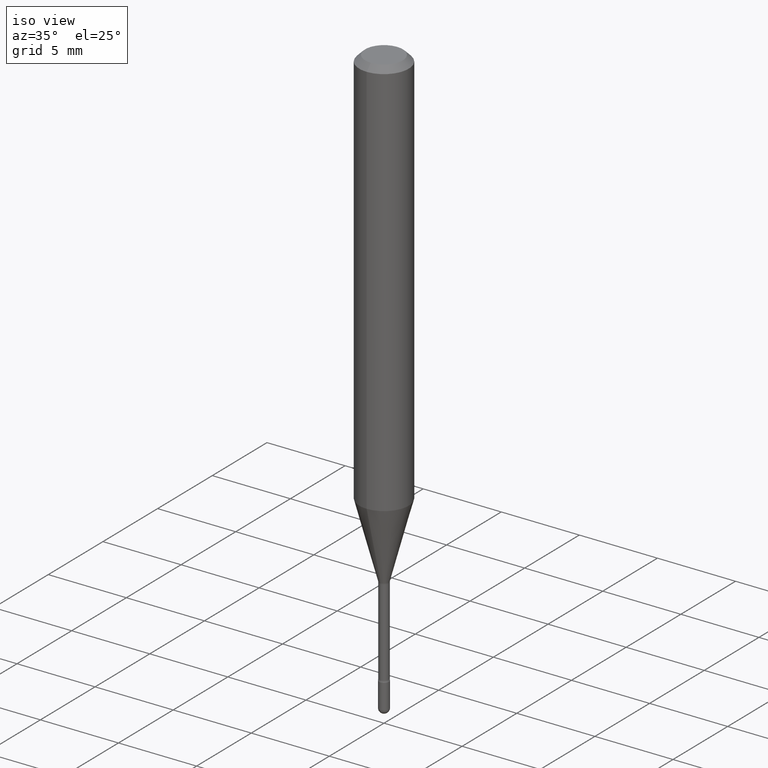
[diagram: clean part render]
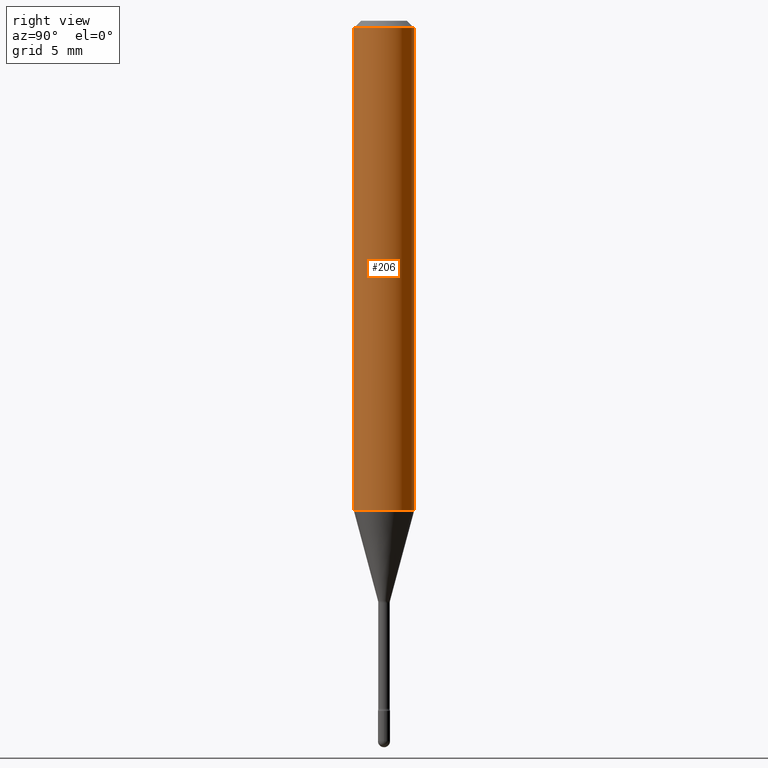
[diagram: tour spotlight — one face highlighted and labeled with its STEP entity id]
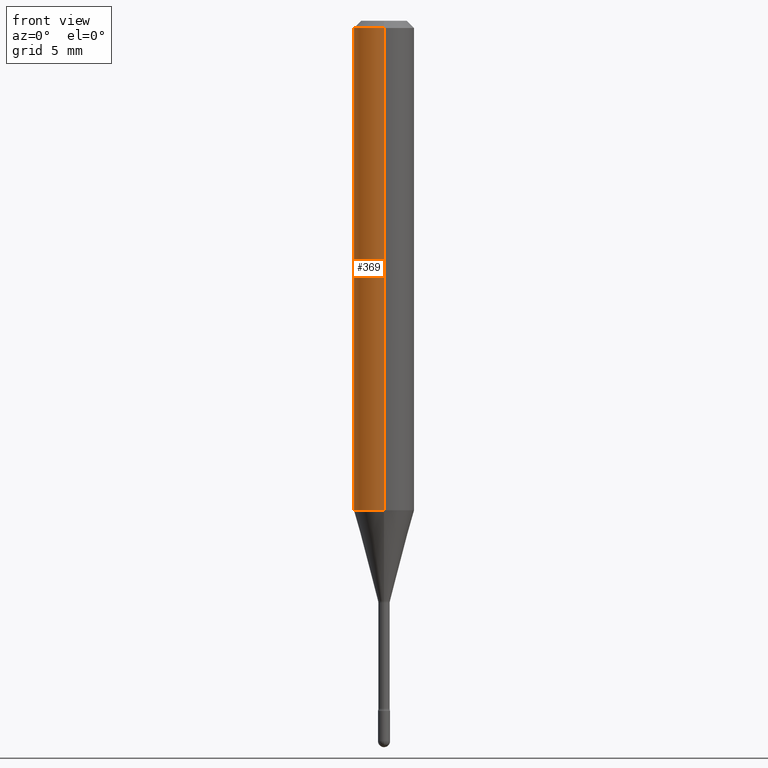
[diagram: tour spotlight — one face highlighted and labeled with its STEP entity id]
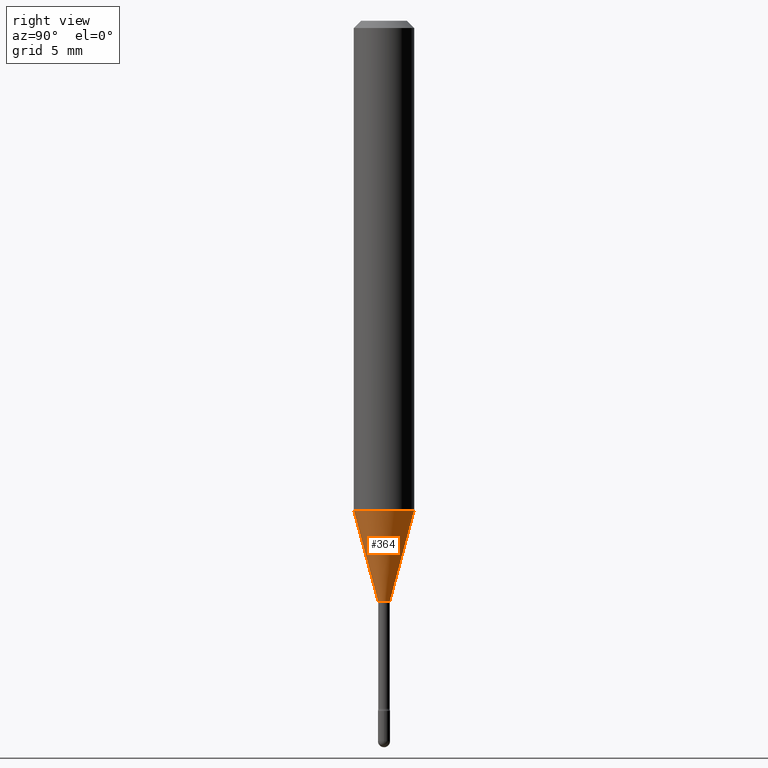
[diagram: tour spotlight — one face highlighted and labeled with its STEP entity id]
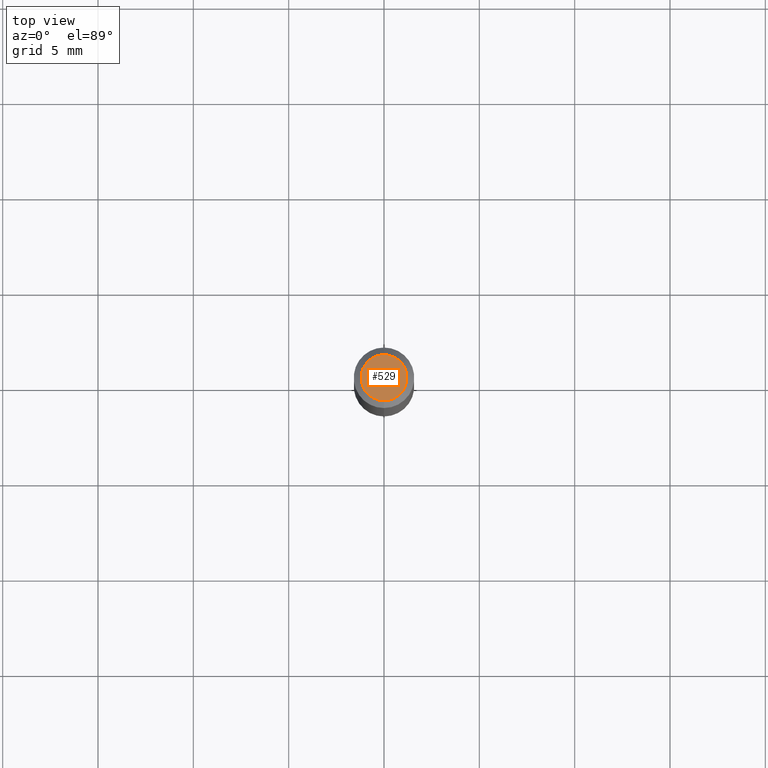
[diagram: tour spotlight — one face highlighted and labeled with its STEP entity id]
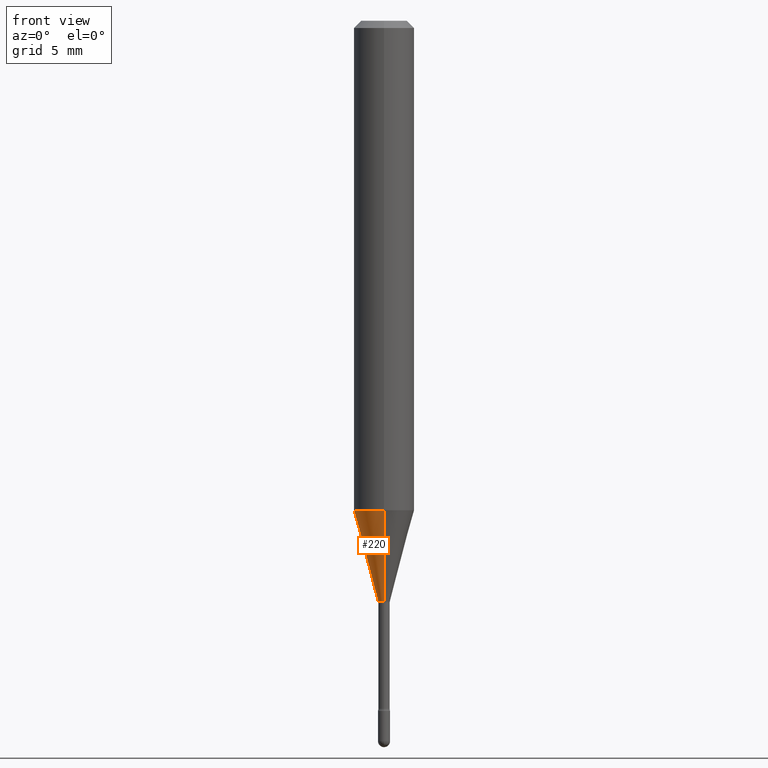
[diagram: tour spotlight — one face highlighted and labeled with its STEP entity id]
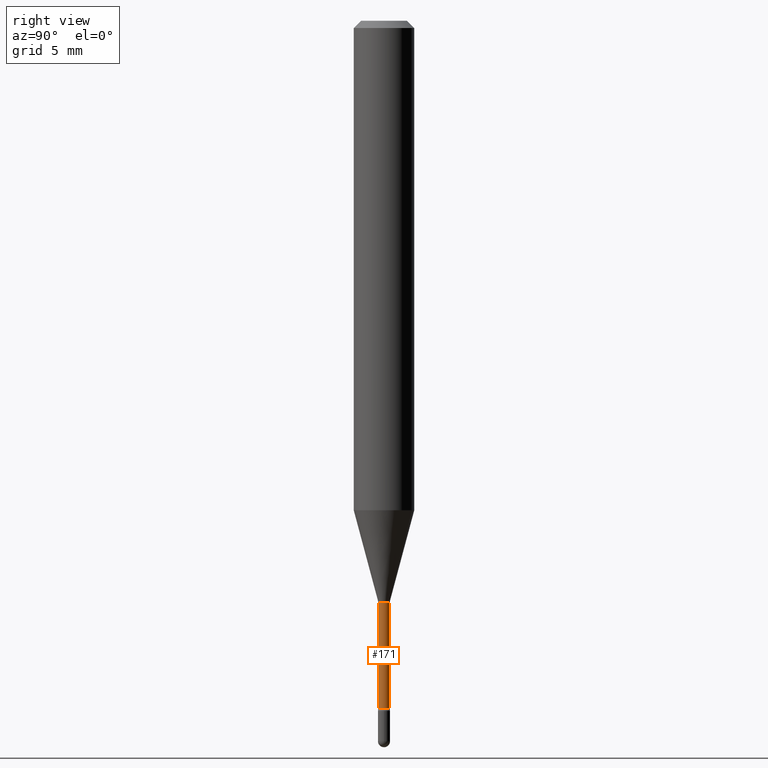
[diagram: tour spotlight — one face highlighted and labeled with its STEP entity id]
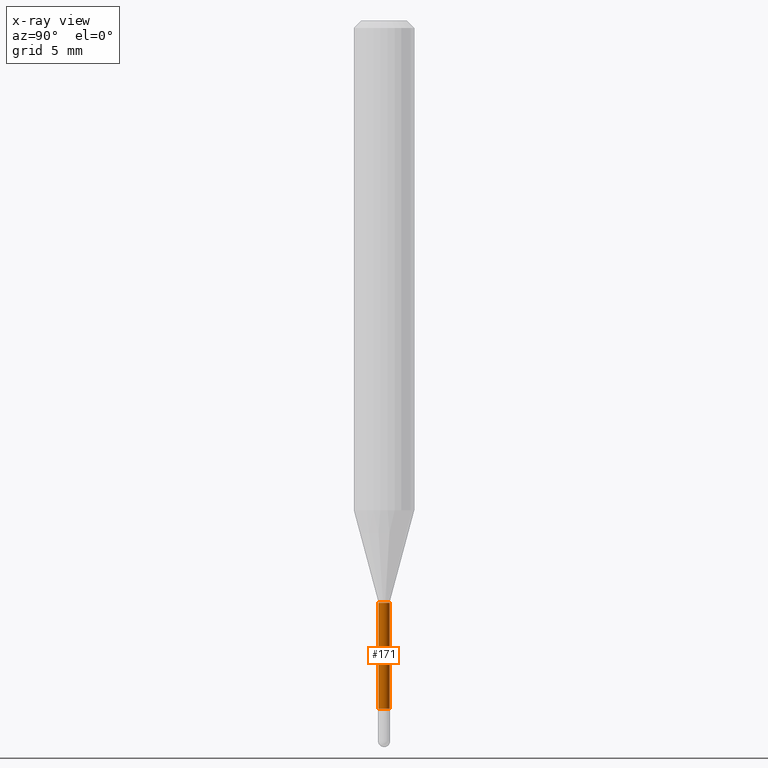
[diagram: x-ray of the same camera — body ghosted, this tour face saturated]
A machine part: a face-by-face anatomy tour. The part has 19 B-rep faces; the first image is the clean iso view, then the 6 largest visible faces are spotlighted one at a time (largest first), each with its STEP entity span.

Face 1 — right view, entity #206. In plain terms, the highlighted cylindrical surface (edge-blend (fillet) strip) has radius 1.5875 mm, axis along (-0, 0, 1).
Definition (entity closure, byte-faithful):
#1 = CARTESIAN_POINT ( 'NONE',  ( -4.364351673553912750E-16, -0.06250000000000005551, -0.01499999999999986587 ) ) ;
#18 = FACE_OUTER_BOUND ( 'NONE', #409, .T. ) ;
#44 = EDGE_CURVE ( 'NONE', #263, #101, #67, .T. ) ;
#67 = CIRCLE ( 'NONE', #438, 0.06250000000000000000 ) ;
#83 = EDGE_CURVE ( 'NONE', #263, #553, #386, .T. ) ;
#97 = CIRCLE ( 'NONE', #464, 0.06250000000000000000 ) ;
#101 = VERTEX_POINT ( 'NONE', #527 ) ;
#105 = DIRECTION ( 'NONE',  ( -6.982962677686265922E-15, -1.000000000000000000, 3.483106191921935554E-15 ) ) ;
#147 = DIRECTION ( 'NONE',  ( -2.445518621673723305E-29, 3.491410000228168223E-15, 1.000000000000000000 ) ) ;
#173 = CARTESIAN_POINT ( 'NONE',  ( 2.471437258851155351E-29, -3.528413435095343554E-15, -1.010598421515879863 ) ) ;
#192 = VERTEX_POINT ( 'NONE', #281 ) ;
#206 = ADVANCED_FACE ( 'NONE', ( #18 ), #402, .T. ) ;
#213 = EDGE_CURVE ( 'NONE', #553, #192, #97, .T. ) ;
#247 = ORIENTED_EDGE ( 'NONE', *, *, #251, .T. ) ;
#251 = EDGE_CURVE ( 'NONE', #101, #192, #279, .T. ) ;
#263 = VERTEX_POINT ( 'NONE', #452 ) ;
#275 = DIRECTION ( 'NONE',  ( -6.982962677686265922E-15, -1.000000000000000000, 3.491410000228167829E-15 ) ) ;
#279 = LINE ( 'NONE', #287, #328 ) ;
#281 = CARTESIAN_POINT ( 'NONE',  ( 4.440892098500874653E-16, 0.06249999999999993755, -0.01500000000000030129 ) ) ;
#287 = CARTESIAN_POINT ( 'NONE',  ( 4.440892098500625669E-16, 0.06250000000000000000, 2.598602738769855986E-16 ) ) ;
#298 = DIRECTION ( 'NONE',  ( -2.445518621673723586E-29, 3.491410000228167829E-15, 1.000000000000000000 ) ) ;
#316 = ORIENTED_EDGE ( 'NONE', *, *, #83, .F. ) ;
#328 = VECTOR ( 'NONE', #147, 39.37007874015748143 ) ;
#331 = ORIENTED_EDGE ( 'NONE', *, *, #213, .F. ) ;
#337 = ORIENTED_EDGE ( 'NONE', *, *, #44, .T. ) ;
#340 = AXIS2_PLACEMENT_3D ( 'NONE', #506, #398, #275 ) ;
#363 = CARTESIAN_POINT ( 'NONE',  ( 3.668277932510605575E-31, -5.237115000342280931E-17, -0.01500000000000008271 ) ) ;
#378 = CARTESIAN_POINT ( 'NONE',  ( -4.364351673553916201E-16, -0.06250000000000000000, 6.962865239055065279E-16 ) ) ;
#386 = LINE ( 'NONE', #378, #556 ) ;
#398 = DIRECTION ( 'NONE',  ( -2.445518621673723586E-29, 3.491410000228167829E-15, 1.000000000000000000 ) ) ;
#402 = CYLINDRICAL_SURFACE ( 'NONE', #340, 0.06250000000000000000 ) ;
#409 = EDGE_LOOP ( 'NONE', ( #337, #247, #331, #316 ) ) ;
#438 = AXIS2_PLACEMENT_3D ( 'NONE', #173, #298, #562 ) ;
#452 = CARTESIAN_POINT ( 'NONE',  ( -4.364351673553669682E-16, -0.06250000000000353884, -1.010598421515879641 ) ) ;
#464 = AXIS2_PLACEMENT_3D ( 'NONE', #363, #502, #105 ) ;
#479 = DIRECTION ( 'NONE',  ( -2.445518621673723305E-29, 3.491410000228168223E-15, 1.000000000000000000 ) ) ;
#502 = DIRECTION ( 'NONE',  ( -2.445518621673723586E-29, 3.491410000228167829E-15, 1.000000000000000000 ) ) ;
#506 = CARTESIAN_POINT ( 'NONE',  ( -1.169113584055446105E-44, 1.669184350826100908E-30, 4.780733988912460139E-16 ) ) ;
#527 = CARTESIAN_POINT ( 'NONE',  ( 4.440892098500871695E-16, 0.06249999999999647504, -1.010598421515880085 ) ) ;
#553 = VERTEX_POINT ( 'NONE', #1 ) ;
#556 = VECTOR ( 'NONE', #479, 39.37007874015748143 ) ;
#562 = DIRECTION ( 'NONE',  ( -6.982962677686265922E-15, -1.000000000000000000, 4.370956789862821150E-15 ) ) ;

Face 2 — front view, entity #369. In plain terms, the highlighted cylindrical surface (edge-blend (fillet) strip) has radius 1.5875 mm, axis along (-0, 0, 1).
Definition (entity closure, byte-faithful):
#1 = CARTESIAN_POINT ( 'NONE',  ( -4.364351673553912750E-16, -0.06250000000000005551, -0.01499999999999986587 ) ) ;
#2 = CARTESIAN_POINT ( 'NONE',  ( 3.668277932510605575E-31, -5.237115000342280931E-17, -0.01500000000000008271 ) ) ;
#29 = ORIENTED_EDGE ( 'NONE', *, *, #251, .F. ) ;
#39 = CYLINDRICAL_SURFACE ( 'NONE', #408, 0.06250000000000000000 ) ;
#68 = EDGE_LOOP ( 'NONE', ( #29, #528, #487, #257 ) ) ;
#83 = EDGE_CURVE ( 'NONE', #263, #553, #386, .T. ) ;
#101 = VERTEX_POINT ( 'NONE', #527 ) ;
#135 = CARTESIAN_POINT ( 'NONE',  ( -1.169113584055446105E-44, 1.669184350826100908E-30, 4.780733988912460139E-16 ) ) ;
#138 = DIRECTION ( 'NONE',  ( -2.445518621673723586E-29, 3.491410000228167829E-15, 1.000000000000000000 ) ) ;
#147 = DIRECTION ( 'NONE',  ( -2.445518621673723305E-29, 3.491410000228168223E-15, 1.000000000000000000 ) ) ;
#159 = DIRECTION ( 'NONE',  ( -2.445518621673723586E-29, 3.491410000228167829E-15, 1.000000000000000000 ) ) ;
#182 = DIRECTION ( 'NONE',  ( -2.445518621673723586E-29, 3.491410000228167829E-15, 1.000000000000000000 ) ) ;
#189 = DIRECTION ( 'NONE',  ( -6.982962677686265922E-15, -1.000000000000000000, 4.370956789862821150E-15 ) ) ;
#192 = VERTEX_POINT ( 'NONE', #281 ) ;
#198 = AXIS2_PLACEMENT_3D ( 'NONE', #323, #159, #189 ) ;
#202 = EDGE_CURVE ( 'NONE', #101, #263, #299, .T. ) ;
#215 = CIRCLE ( 'NONE', #293, 0.06250000000000000000 ) ;
#251 = EDGE_CURVE ( 'NONE', #101, #192, #279, .T. ) ;
#257 = ORIENTED_EDGE ( 'NONE', *, *, #483, .F. ) ;
#263 = VERTEX_POINT ( 'NONE', #452 ) ;
#279 = LINE ( 'NONE', #287, #328 ) ;
#281 = CARTESIAN_POINT ( 'NONE',  ( 4.440892098500874653E-16, 0.06249999999999993755, -0.01500000000000030129 ) ) ;
#287 = CARTESIAN_POINT ( 'NONE',  ( 4.440892098500625669E-16, 0.06250000000000000000, 2.598602738769855986E-16 ) ) ;
#293 = AXIS2_PLACEMENT_3D ( 'NONE', #2, #182, #488 ) ;
#299 = CIRCLE ( 'NONE', #198, 0.06250000000000000000 ) ;
#323 = CARTESIAN_POINT ( 'NONE',  ( 2.471437258851155351E-29, -3.528413435095343554E-15, -1.010598421515879863 ) ) ;
#328 = VECTOR ( 'NONE', #147, 39.37007874015748143 ) ;
#369 = ADVANCED_FACE ( 'NONE', ( #436 ), #39, .T. ) ;
#378 = CARTESIAN_POINT ( 'NONE',  ( -4.364351673553916201E-16, -0.06250000000000000000, 6.962865239055065279E-16 ) ) ;
#386 = LINE ( 'NONE', #378, #556 ) ;
#408 = AXIS2_PLACEMENT_3D ( 'NONE', #135, #138, #566 ) ;
#436 = FACE_OUTER_BOUND ( 'NONE', #68, .T. ) ;
#452 = CARTESIAN_POINT ( 'NONE',  ( -4.364351673553669682E-16, -0.06250000000000353884, -1.010598421515879641 ) ) ;
#479 = DIRECTION ( 'NONE',  ( -2.445518621673723305E-29, 3.491410000228168223E-15, 1.000000000000000000 ) ) ;
#483 = EDGE_CURVE ( 'NONE', #192, #553, #215, .T. ) ;
#487 = ORIENTED_EDGE ( 'NONE', *, *, #83, .T. ) ;
#488 = DIRECTION ( 'NONE',  ( -6.982962677686265922E-15, -1.000000000000000000, 3.483106191921935554E-15 ) ) ;
#527 = CARTESIAN_POINT ( 'NONE',  ( 4.440892098500871695E-16, 0.06249999999999647504, -1.010598421515880085 ) ) ;
#528 = ORIENTED_EDGE ( 'NONE', *, *, #202, .T. ) ;
#553 = VERTEX_POINT ( 'NONE', #1 ) ;
#556 = VECTOR ( 'NONE', #479, 39.37007874015748143 ) ;
#566 = DIRECTION ( 'NONE',  ( -6.982962677686265922E-15, -1.000000000000000000, 3.491410000228167829E-15 ) ) ;

Face 3 — right view, entity #364. In plain terms, the highlighted conical surface has half-angle 15 deg.
Definition (entity closure, byte-faithful):
#25 = CONICAL_SURFACE ( 'NONE', #387, 0.01226111260566398360, 0.2617993877991499074 ) ;
#43 = DIRECTION ( 'NONE',  ( -1.807323732225327773E-15, -0.2588190451025178529, 0.9659258262890690894 ) ) ;
#44 = EDGE_CURVE ( 'NONE', #263, #101, #67, .T. ) ;
#47 = VECTOR ( 'NONE', #354, 39.37007874015748854 ) ;
#67 = CIRCLE ( 'NONE', #438, 0.06250000000000000000 ) ;
#88 = AXIS2_PLACEMENT_3D ( 'NONE', #181, #494, #314 ) ;
#98 = LINE ( 'NONE', #312, #47 ) ;
#101 = VERTEX_POINT ( 'NONE', #527 ) ;
#136 = EDGE_CURVE ( 'NONE', #500, #101, #98, .T. ) ;
#161 = VERTEX_POINT ( 'NONE', #431 ) ;
#169 = ORIENTED_EDGE ( 'NONE', *, *, #413, .F. ) ;
#173 = CARTESIAN_POINT ( 'NONE',  ( 2.471437258851155351E-29, -3.528413435095343554E-15, -1.010598421515879863 ) ) ;
#174 = DIRECTION ( 'NONE',  ( -2.445518621673723586E-29, 3.491410000228167829E-15, 1.000000000000000000 ) ) ;
#175 = VECTOR ( 'NONE', #43, 39.37007874015748143 ) ;
#177 = LINE ( 'NONE', #484, #175 ) ;
#178 = ORIENTED_EDGE ( 'NONE', *, *, #136, .T. ) ;
#181 = CARTESIAN_POINT ( 'NONE',  ( 2.929957523608435259E-29, -4.183032141938469542E-15, -1.198092501787273223 ) ) ;
#204 = ORIENTED_EDGE ( 'NONE', *, *, #44, .F. ) ;
#263 = VERTEX_POINT ( 'NONE', #452 ) ;
#267 = CIRCLE ( 'NONE', #88, 0.01226111260566398360 ) ;
#270 = CARTESIAN_POINT ( 'NONE',  ( 2.656048273965141059E-16, 0.01226111260565980292, -1.198092501787273223 ) ) ;
#298 = DIRECTION ( 'NONE',  ( -2.445518621673723586E-29, 3.491410000228167829E-15, 1.000000000000000000 ) ) ;
#305 = CARTESIAN_POINT ( 'NONE',  ( 2.929957523608435259E-29, -4.183032141938469542E-15, -1.198092501787273223 ) ) ;
#312 = CARTESIAN_POINT ( 'NONE',  ( 8.712044494294066016E-17, 0.01226111260565980118, -1.198092501787273223 ) ) ;
#314 = DIRECTION ( 'NONE',  ( -6.982962677686265922E-15, -1.000000000000000000, 0.000000000000000000 ) ) ;
#354 = DIRECTION ( 'NONE',  ( 1.839019923739597554E-15, 0.2588190451025245697, 0.9659258262890670910 ) ) ;
#364 = ADVANCED_FACE ( 'NONE', ( #526 ), #25, .T. ) ;
#371 = EDGE_LOOP ( 'NONE', ( #524, #178, #204, #169 ) ) ;
#387 = AXIS2_PLACEMENT_3D ( 'NONE', #305, #174, #563 ) ;
#413 = EDGE_CURVE ( 'NONE', #161, #263, #177, .T. ) ;
#431 = CARTESIAN_POINT ( 'NONE',  ( -8.561889171223090403E-17, -0.01226111260566816602, -1.198092501787273223 ) ) ;
#438 = AXIS2_PLACEMENT_3D ( 'NONE', #173, #298, #562 ) ;
#452 = CARTESIAN_POINT ( 'NONE',  ( -4.364351673553669682E-16, -0.06250000000000353884, -1.010598421515879641 ) ) ;
#484 = CARTESIAN_POINT ( 'NONE',  ( -8.561889171223090403E-17, -0.01226111260566816602, -1.198092501787273223 ) ) ;
#494 = DIRECTION ( 'NONE',  ( -2.445518621673723586E-29, 3.491410000228167829E-15, 1.000000000000000000 ) ) ;
#500 = VERTEX_POINT ( 'NONE', #270 ) ;
#524 = ORIENTED_EDGE ( 'NONE', *, *, #535, .T. ) ;
#526 = FACE_OUTER_BOUND ( 'NONE', #371, .T. ) ;
#527 = CARTESIAN_POINT ( 'NONE',  ( 4.440892098500871695E-16, 0.06249999999999647504, -1.010598421515880085 ) ) ;
#535 = EDGE_CURVE ( 'NONE', #161, #500, #267, .T. ) ;
#562 = DIRECTION ( 'NONE',  ( -6.982962677686265922E-15, -1.000000000000000000, 4.370956789862821150E-15 ) ) ;
#563 = DIRECTION ( 'NONE',  ( -6.982962677686265922E-15, -1.000000000000000000, 0.000000000000000000 ) ) ;

Face 4 — top view, entity #529. In plain terms, the highlighted planar face has unit normal (0, -0, -1).
Definition (entity closure, byte-faithful):
#15 = VERTEX_POINT ( 'NONE', #86 ) ;
#24 = CIRCLE ( 'NONE', #335, 0.04749999999999999362 ) ;
#40 = AXIS2_PLACEMENT_3D ( 'NONE', #259, #443, #144 ) ;
#53 = VERTEX_POINT ( 'NONE', #77 ) ;
#77 = CARTESIAN_POINT ( 'NONE',  ( -3.773273898774340269E-16, -0.04749999999999999362, 8.309155435508116494E-17 ) ) ;
#82 = PLANE ( 'NONE',  #40 ) ;
#86 = CARTESIAN_POINT ( 'NONE',  ( 3.840629472727447874E-16, 0.04749999999999999362, -2.485923956665947867E-16 ) ) ;
#95 = DIRECTION ( 'NONE',  ( -2.445518621673723586E-29, 3.491410000228167829E-15, 1.000000000000000000 ) ) ;
#103 = ORIENTED_EDGE ( 'NONE', *, *, #330, .T. ) ;
#121 = EDGE_CURVE ( 'NONE', #53, #15, #24, .T. ) ;
#144 = DIRECTION ( 'NONE',  ( 6.982962677686265922E-15, 1.000000000000000000, -3.491410000228168223E-15 ) ) ;
#168 = DIRECTION ( 'NONE',  ( -6.982962677686266711E-15, -1.000000000000000000, 3.491410000228168223E-15 ) ) ;
#259 = CARTESIAN_POINT ( 'NONE',  ( 3.316907271900976096E-16, 0.04749999999999999362, 3.181951410690665652E-17 ) ) ;
#301 = FACE_OUTER_BOUND ( 'NONE', #390, .T. ) ;
#317 = CARTESIAN_POINT ( 'NONE',  ( 2.023915101249333649E-45, -2.888815411064621442E-31, -8.275042065575681088E-17 ) ) ;
#330 = EDGE_CURVE ( 'NONE', #15, #53, #397, .T. ) ;
#335 = AXIS2_PLACEMENT_3D ( 'NONE', #433, #481, #168 ) ;
#356 = DIRECTION ( 'NONE',  ( -6.982962677686266711E-15, -1.000000000000000000, 3.491410000228168223E-15 ) ) ;
#390 = EDGE_LOOP ( 'NONE', ( #103, #552 ) ) ;
#397 = CIRCLE ( 'NONE', #522, 0.04749999999999999362 ) ;
#433 = CARTESIAN_POINT ( 'NONE',  ( 2.023915101249333649E-45, -2.888815411064621442E-31, -8.275042065575681088E-17 ) ) ;
#443 = DIRECTION ( 'NONE',  ( 2.445518621673722745E-29, -3.491410000228168223E-15, -1.000000000000000000 ) ) ;
#481 = DIRECTION ( 'NONE',  ( -2.445518621673723586E-29, 3.491410000228167829E-15, 1.000000000000000000 ) ) ;
#522 = AXIS2_PLACEMENT_3D ( 'NONE', #317, #95, #356 ) ;
#529 = ADVANCED_FACE ( 'NONE', ( #301 ), #82, .F. ) ;
#552 = ORIENTED_EDGE ( 'NONE', *, *, #121, .T. ) ;

Face 5 — front view, entity #220. In plain terms, the highlighted conical surface has half-angle 15 deg.
Definition (entity closure, byte-faithful):
#43 = DIRECTION ( 'NONE',  ( -1.807323732225327773E-15, -0.2588190451025178529, 0.9659258262890690894 ) ) ;
#47 = VECTOR ( 'NONE', #354, 39.37007874015748854 ) ;
#79 = CONICAL_SURFACE ( 'NONE', #439, 0.01226111260566398360, 0.2617993877991499074 ) ;
#98 = LINE ( 'NONE', #312, #47 ) ;
#99 = CIRCLE ( 'NONE', #191, 0.01226111260566398360 ) ;
#101 = VERTEX_POINT ( 'NONE', #527 ) ;
#136 = EDGE_CURVE ( 'NONE', #500, #101, #98, .T. ) ;
#157 = ORIENTED_EDGE ( 'NONE', *, *, #282, .T. ) ;
#159 = DIRECTION ( 'NONE',  ( -2.445518621673723586E-29, 3.491410000228167829E-15, 1.000000000000000000 ) ) ;
#161 = VERTEX_POINT ( 'NONE', #431 ) ;
#175 = VECTOR ( 'NONE', #43, 39.37007874015748143 ) ;
#177 = LINE ( 'NONE', #484, #175 ) ;
#185 = ORIENTED_EDGE ( 'NONE', *, *, #202, .F. ) ;
#187 = EDGE_LOOP ( 'NONE', ( #565, #157, #246, #185 ) ) ;
#189 = DIRECTION ( 'NONE',  ( -6.982962677686265922E-15, -1.000000000000000000, 4.370956789862821150E-15 ) ) ;
#190 = CARTESIAN_POINT ( 'NONE',  ( 2.929957523608435259E-29, -4.183032141938469542E-15, -1.198092501787273223 ) ) ;
#191 = AXIS2_PLACEMENT_3D ( 'NONE', #190, #545, #536 ) ;
#198 = AXIS2_PLACEMENT_3D ( 'NONE', #323, #159, #189 ) ;
#202 = EDGE_CURVE ( 'NONE', #101, #263, #299, .T. ) ;
#220 = ADVANCED_FACE ( 'NONE', ( #353 ), #79, .T. ) ;
#230 = CARTESIAN_POINT ( 'NONE',  ( 2.929957523608435259E-29, -4.183032141938469542E-15, -1.198092501787273223 ) ) ;
#246 = ORIENTED_EDGE ( 'NONE', *, *, #413, .T. ) ;
#263 = VERTEX_POINT ( 'NONE', #452 ) ;
#270 = CARTESIAN_POINT ( 'NONE',  ( 2.656048273965141059E-16, 0.01226111260565980292, -1.198092501787273223 ) ) ;
#282 = EDGE_CURVE ( 'NONE', #500, #161, #99, .T. ) ;
#284 = DIRECTION ( 'NONE',  ( -6.982962677686265922E-15, -1.000000000000000000, 0.000000000000000000 ) ) ;
#299 = CIRCLE ( 'NONE', #198, 0.06250000000000000000 ) ;
#312 = CARTESIAN_POINT ( 'NONE',  ( 8.712044494294066016E-17, 0.01226111260565980118, -1.198092501787273223 ) ) ;
#323 = CARTESIAN_POINT ( 'NONE',  ( 2.471437258851155351E-29, -3.528413435095343554E-15, -1.010598421515879863 ) ) ;
#353 = FACE_OUTER_BOUND ( 'NONE', #187, .T. ) ;
#354 = DIRECTION ( 'NONE',  ( 1.839019923739597554E-15, 0.2588190451025245697, 0.9659258262890670910 ) ) ;
#406 = DIRECTION ( 'NONE',  ( -2.445518621673723586E-29, 3.491410000228167829E-15, 1.000000000000000000 ) ) ;
#413 = EDGE_CURVE ( 'NONE', #161, #263, #177, .T. ) ;
#431 = CARTESIAN_POINT ( 'NONE',  ( -8.561889171223090403E-17, -0.01226111260566816602, -1.198092501787273223 ) ) ;
#439 = AXIS2_PLACEMENT_3D ( 'NONE', #230, #406, #284 ) ;
#452 = CARTESIAN_POINT ( 'NONE',  ( -4.364351673553669682E-16, -0.06250000000000353884, -1.010598421515879641 ) ) ;
#484 = CARTESIAN_POINT ( 'NONE',  ( -8.561889171223090403E-17, -0.01226111260566816602, -1.198092501787273223 ) ) ;
#500 = VERTEX_POINT ( 'NONE', #270 ) ;
#527 = CARTESIAN_POINT ( 'NONE',  ( 4.440892098500871695E-16, 0.06249999999999647504, -1.010598421515880085 ) ) ;
#536 = DIRECTION ( 'NONE',  ( -6.982962677686265922E-15, -1.000000000000000000, 0.000000000000000000 ) ) ;
#545 = DIRECTION ( 'NONE',  ( -2.445518621673723586E-29, 3.491410000228167829E-15, 1.000000000000000000 ) ) ;
#565 = ORIENTED_EDGE ( 'NONE', *, *, #136, .F. ) ;

Face 6 — right view, entity #171. An x-ray twin of the same camera follows (body ghosted, this face saturated) — the face is partly hidden behind the body. In plain terms, the highlighted cylindrical surface (edge-blend (fillet) strip) has radius 0.2985 mm, axis along (-0, 0, 1).
Definition (entity closure, byte-faithful):
#12 = DIRECTION ( 'NONE',  ( -2.445518621673723305E-29, 3.491410000228168223E-15, 1.000000000000000000 ) ) ;
#37 = CARTESIAN_POINT ( 'NONE',  ( -8.204981146277921190E-17, -0.01175000000000500297, -1.420316251501201554 ) ) ;
#42 = VERTEX_POINT ( 'NONE', #389 ) ;
#45 = DIRECTION ( 'NONE',  ( -6.982962677686266711E-15, -1.000000000000000000, 0.000000000000000000 ) ) ;
#85 = CARTESIAN_POINT ( 'NONE',  ( 8.348877145184664215E-17, 0.01174999999999580894, -1.201974787463810701 ) ) ;
#107 = CIRCLE ( 'NONE', #336, 0.01175000000000000523 ) ;
#130 = ORIENTED_EDGE ( 'NONE', *, *, #440, .F. ) ;
#145 = ORIENTED_EDGE ( 'NONE', *, *, #280, .T. ) ;
#162 = AXIS2_PLACEMENT_3D ( 'NONE', #271, #444, #45 ) ;
#167 = AXIS2_PLACEMENT_3D ( 'NONE', #172, #339, #521 ) ;
#171 = ADVANCED_FACE ( 'NONE', ( #209 ), #382, .T. ) ;
#172 = CARTESIAN_POINT ( 'NONE',  ( -1.169113584055446105E-44, 1.669184350826100908E-30, 4.780733988912460139E-16 ) ) ;
#195 = ORIENTED_EDGE ( 'NONE', *, *, #503, .F. ) ;
#199 = VECTOR ( 'NONE', #12, 39.37007874015748143 ) ;
#203 = EDGE_LOOP ( 'NONE', ( #370, #145, #130, #195 ) ) ;
#209 = FACE_OUTER_BOUND ( 'NONE', #203, .T. ) ;
#223 = LINE ( 'NONE', #469, #357 ) ;
#229 = DIRECTION ( 'NONE',  ( -2.445518621673723586E-29, 3.491410000228167829E-15, 1.000000000000000000 ) ) ;
#271 = CARTESIAN_POINT ( 'NONE',  ( 3.473409841712008038E-29, -4.958906363977880631E-15, -1.420316251501201554 ) ) ;
#273 = DIRECTION ( 'NONE',  ( -6.982962677686265922E-15, -1.000000000000000000, 0.000000000000000000 ) ) ;
#280 = EDGE_CURVE ( 'NONE', #491, #546, #404, .T. ) ;
#311 = CARTESIAN_POINT ( 'NONE',  ( 8.615330671094704487E-17, 0.01174999999999508729, -1.420316251501201554 ) ) ;
#336 = AXIS2_PLACEMENT_3D ( 'NONE', #492, #229, #273 ) ;
#339 = DIRECTION ( 'NONE',  ( -2.445518621673723586E-29, 3.491410000228167829E-15, 1.000000000000000000 ) ) ;
#343 = EDGE_CURVE ( 'NONE', #384, #491, #428, .T. ) ;
#357 = VECTOR ( 'NONE', #381, 39.37007874015748143 ) ;
#370 = ORIENTED_EDGE ( 'NONE', *, *, #343, .T. ) ;
#381 = DIRECTION ( 'NONE',  ( -2.445518621673723305E-29, 3.491410000228168223E-15, 1.000000000000000000 ) ) ;
#382 = CYLINDRICAL_SURFACE ( 'NONE', #167, 0.01175000000000002605 ) ;
#384 = VERTEX_POINT ( 'NONE', #37 ) ;
#389 = CARTESIAN_POINT ( 'NONE',  ( -8.204981146278427787E-17, -0.01175000000000420153, -1.201974787463810701 ) ) ;
#404 = LINE ( 'NONE', #411, #199 ) ;
#411 = CARTESIAN_POINT ( 'NONE',  ( 8.348877145181194460E-17, 0.01175000000000002605, 4.370493313885649900E-16 ) ) ;
#428 = CIRCLE ( 'NONE', #162, 0.01175000000000004513 ) ;
#440 = EDGE_CURVE ( 'NONE', #42, #546, #107, .T. ) ;
#444 = DIRECTION ( 'NONE',  ( -2.445518621673723586E-29, 3.491410000228167829E-15, 1.000000000000000000 ) ) ;
#469 = CARTESIAN_POINT ( 'NONE',  ( -8.204981146281379852E-17, -0.01175000000000002605, 5.190974663939271365E-16 ) ) ;
#491 = VERTEX_POINT ( 'NONE', #311 ) ;
#492 = CARTESIAN_POINT ( 'NONE',  ( 2.939451725525065070E-29, -4.196586792973275529E-15, -1.201974787463810701 ) ) ;
#503 = EDGE_CURVE ( 'NONE', #384, #42, #223, .T. ) ;
#521 = DIRECTION ( 'NONE',  ( -6.982962677686265133E-15, -1.000000000000000000, 3.491410000228168618E-15 ) ) ;
#546 = VERTEX_POINT ( 'NONE', #85 ) ;